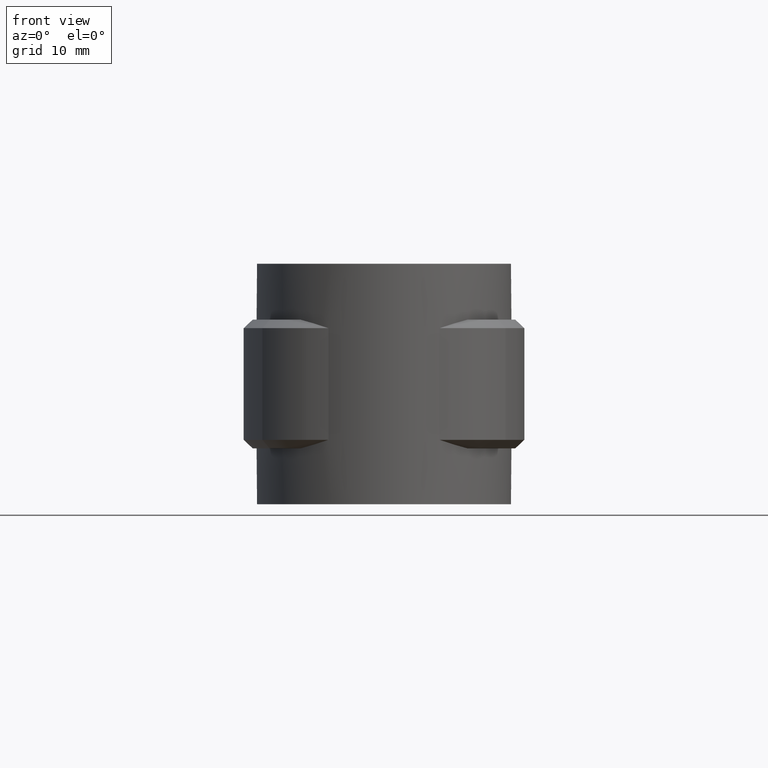
[diagram: clean part render]
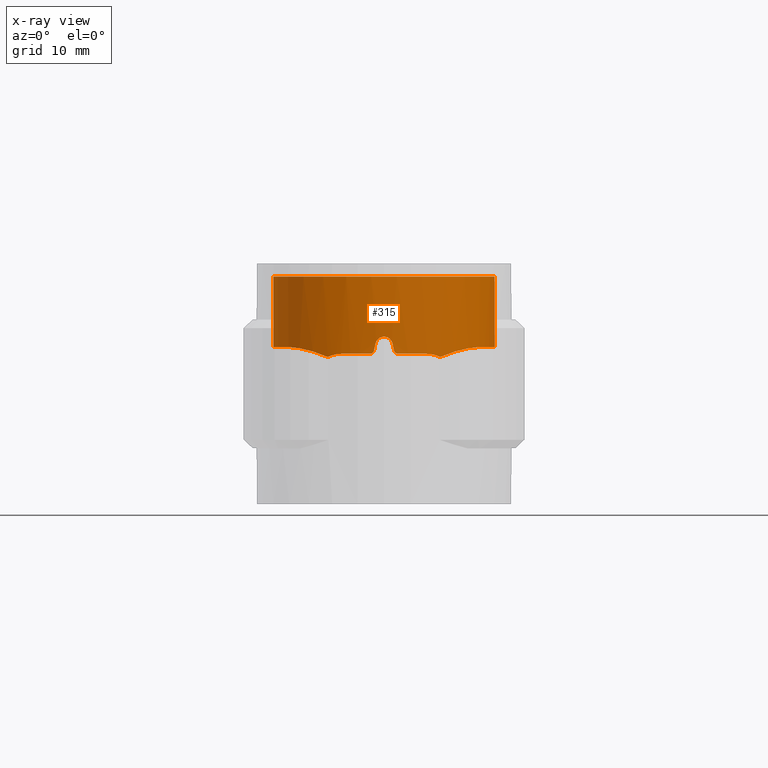
[diagram: x-ray — body ghosted, one internal face saturated and labeled with its STEP entity id]
A machine part, front view, then the same camera in x-ray: the body is ghosted and one INTERNAL B-rep face — a face not visible from any outside direction — is saturated and labeled: STEP entity #315.
In plain terms, the highlighted cylindrical surface (partial cylindrical patch) has radius 12.91 mm, axis along (0, 0, 1).
Its self-contained STEP definition (entity closure, byte-faithful):
#315 = ADVANCED_FACE( '', ( #502 ), #503, .T. );
#502 = FACE_OUTER_BOUND( '', #904, .T. );
#503 = CYLINDRICAL_SURFACE( '', #905, 12.9100000000000 );
#904 = EDGE_LOOP( '', ( #1690, #1691, #1692, #1693, #1694, #1695, #1696, #1697, #1698, #1699, #1700, #1701, #1702, #1703, #1704, #1705 ) );
#905 = AXIS2_PLACEMENT_3D( '', #1706, #1707, #1708 );
#1690 = ORIENTED_EDGE( '', *, *, #4140, .F. );
#1691 = ORIENTED_EDGE( '', *, *, #4141, .F. );
#1692 = ORIENTED_EDGE( '', *, *, #4142, .F. );
#1693 = ORIENTED_EDGE( '', *, *, #4143, .F. );
#1694 = ORIENTED_EDGE( '', *, *, #4144, .F. );
#1695 = ORIENTED_EDGE( '', *, *, #4145, .T. );
#1696 = ORIENTED_EDGE( '', *, *, #4146, .F. );
#1697 = ORIENTED_EDGE( '', *, *, #4147, .F. );
#1698 = ORIENTED_EDGE( '', *, *, #4148, .F. );
#1699 = ORIENTED_EDGE( '', *, *, #4149, .F. );
#1700 = ORIENTED_EDGE( '', *, *, #4150, .F. );
#1701 = ORIENTED_EDGE( '', *, *, #4151, .F. );
#1702 = ORIENTED_EDGE( '', *, *, #4152, .F. );
#1703 = ORIENTED_EDGE( '', *, *, #4153, .F. );
#1704 = ORIENTED_EDGE( '', *, *, #4154, .F. );
#1705 = ORIENTED_EDGE( '', *, *, #4155, .F. );
#1706 = CARTESIAN_POINT( '', ( 0.000000000000000, 0.000000000000000, 0.000000000000000 ) );
#1707 = DIRECTION( '', ( 0.000000000000000, 0.000000000000000, 1.00000000000000 ) );
#1708 = DIRECTION( '', ( 1.00000000000000, -6.12303176911189E-017, 0.000000000000000 ) );
#4140 = EDGE_CURVE( '', #4632, #4633, #4634, .T. );
#4141 = EDGE_CURVE( '', #4635, #4632, #4636, .T. );
#4142 = EDGE_CURVE( '', #4637, #4635, #4638, .T. );
#4143 = EDGE_CURVE( '', #4639, #4637, #4640, .T. );
#4144 = EDGE_CURVE( '', #4641, #4639, #4642, .F. );
#4145 = EDGE_CURVE( '', #4641, #4643, #4644, .T. );
#4146 = EDGE_CURVE( '', #4645, #4643, #4646, .T. );
#4147 = EDGE_CURVE( '', #4647, #4645, #4648, .T. );
#4148 = EDGE_CURVE( '', #4649, #4647, #4650, .T. );
#4149 = EDGE_CURVE( '', #4651, #4649, #4652, .T. );
#4150 = EDGE_CURVE( '', #4653, #4651, #4654, .T. );
#4151 = EDGE_CURVE( '', #4655, #4653, #4656, .T. );
#4152 = EDGE_CURVE( '', #4657, #4655, #4658, .T. );
#4153 = EDGE_CURVE( '', #4659, #4657, #4660, .T. );
#4154 = EDGE_CURVE( '', #4661, #4659, #4662, .T. );
#4155 = EDGE_CURVE( '', #4633, #4661, #4663, .T. );
#4632 = VERTEX_POINT( '', #5454 );
#4633 = VERTEX_POINT( '', #5455 );
#4634 = B_SPLINE_CURVE_WITH_KNOTS( '', 3, ( #5456, #5457, #5458, #5459, #5460, #5461 ), .UNSPECIFIED., .F., .F., ( 4, 2, 4 ), ( 0.0100745744029079, 0.0109624641031997, 0.0118503538034916 ), .UNSPECIFIED. );
#4635 = VERTEX_POINT( '', #5462 );
#4636 = B_SPLINE_CURVE_WITH_KNOTS( '', 3, ( #5463, #5464, #5465, #5466, #5467, #5468, #5469, #5470, #5471, #5472 ), .UNSPECIFIED., .F., .F., ( 4, 2, 2, 2, 4 ), ( 5.64749895672491E-005, 0.00336964445844549, 0.00419793682566506, 0.00502622919288462, 0.00668281392732375 ), .UNSPECIFIED. );
#4637 = VERTEX_POINT( '', #5473 );
#4638 = B_SPLINE_CURVE_WITH_KNOTS( '', 3, ( #5474, #5475, #5476, #5477, #5478, #5479, #5480, #5481, #5482, #5483, #5484, #5485, #5486, #5487, #5488, #5489, #5490, #5491, #5492, #5493, #5494, #5495, #5496, #5497 ), .UNSPECIFIED., .F., .F., ( 4, 2, 2, 2, 2, 2, 2, 2, 2, 2, 2, 4 ), ( 0.000000000000000, 0.00262616169573971, 0.00393924254360956, 0.00525232339147942, 0.00787848508721913, 0.00919156593508899, 0.0105046467829588, 0.0118177276308287, 0.0131308084786986, 0.0157569701744383, 0.0183831318701780, 0.0210092935659177 ), .UNSPECIFIED. );
#4639 = VERTEX_POINT( '', #5498 );
#4640 = LINE( '', #5499, #5500 );
#4641 = VERTEX_POINT( '', #5501 );
#4642 = CIRCLE( '', #5502, 12.9100000000000 );
#4643 = VERTEX_POINT( '', #5503 );
#4644 = LINE( '', #5504, #5505 );
#4645 = VERTEX_POINT( '', #5506 );
#4646 = B_SPLINE_CURVE_WITH_KNOTS( '', 3, ( #5507, #5508, #5509, #5510, #5511, #5512, #5513, #5514, #5515, #5516, #5517, #5518, #5519, #5520, #5521, #5522, #5523, #5524, #5525, #5526, #5527, #5528, #5529, #5530 ), .UNSPECIFIED., .F., .F., ( 4, 2, 2, 2, 2, 2, 2, 2, 2, 2, 2, 4 ), ( 0.000129656456609887, 0.00275580936476012, 0.00538196227291035, 0.00800811518106058, 0.00932119163513569, 0.0106342680892108, 0.0119473445432859, 0.0132604209973610, 0.0158865739055113, 0.0171996503595864, 0.0185127268136615, 0.0211388797218117 ), .UNSPECIFIED. );
#4647 = VERTEX_POINT( '', #5531 );
#4648 = B_SPLINE_CURVE_WITH_KNOTS( '', 3, ( #5532, #5533, #5534, #5535, #5536, #5537, #5538, #5539, #5540, #5541 ), .UNSPECIFIED., .F., .F., ( 4, 2, 2, 2, 4 ), ( 0.0160978879789234, 0.0177464275277819, 0.0193949670766404, 0.0210435066254989, 0.0226920461743574 ), .UNSPECIFIED. );
#4649 = VERTEX_POINT( '', #5542 );
#4650 = B_SPLINE_CURVE_WITH_KNOTS( '', 3, ( #5543, #5544, #5545, #5546, #5547, #5548 ), .UNSPECIFIED., .F., .F., ( 4, 2, 4 ), ( 3.87895961444886E-018, 0.000890649610167902, 0.00178129922033580 ), .UNSPECIFIED. );
#4651 = VERTEX_POINT( '', #5549 );
#4652 = CIRCLE( '', #5550, 12.9100000000000 );
#4653 = VERTEX_POINT( '', #5551 );
#4654 = B_SPLINE_CURVE_WITH_KNOTS( '', 3, ( #5552, #5553, #5554, #5555, #5556, #5557 ), .UNSPECIFIED., .F., .F., ( 4, 2, 4 ), ( 1.78811203067275E-018, 0.000337016490106995, 0.000674032980213989 ), .UNSPECIFIED. );
#4655 = VERTEX_POINT( '', #5558 );
#4656 = ELLIPSE( '', #5559, 58.8122822251916, 12.9100000000000 );
#4657 = VERTEX_POINT( '', #5560 );
#4658 = B_SPLINE_CURVE_WITH_KNOTS( '', 3, ( #5561, #5562, #5563, #5564, #5565, #5566, #5567, #5568, #5569, #5570 ), .UNSPECIFIED., .F., .F., ( 4, 2, 2, 2, 4 ), ( 9.26342742239755E-019, 0.000671833198564516, 0.00134366639712903, 0.00201549959569355, 0.00268733279425806 ), .UNSPECIFIED. );
#4659 = VERTEX_POINT( '', #5571 );
#4660 = ELLIPSE( '', #5572, 58.8122522236967, 12.9100000000000 );
#4661 = VERTEX_POINT( '', #5573 );
#4662 = B_SPLINE_CURVE_WITH_KNOTS( '', 3, ( #5574, #5575, #5576, #5577, #5578, #5579 ), .UNSPECIFIED., .F., .F., ( 4, 2, 4 ), ( 8.59738825340030E-018, 0.000336992785626757, 0.000673985571253506 ), .UNSPECIFIED. );
#4663 = CIRCLE( '', #5580, 12.9100000000000 );
#5454 = CARTESIAN_POINT( '', ( 6.55531539840426, -11.1218676501629, -9.36455840247556 ) );
#5455 = CARTESIAN_POINT( '', ( 5.00000000000000, -11.9024409261294, -9.00000000000000 ) );
#5456 = CARTESIAN_POINT( '', ( 6.55531539839940, -11.1218676501525, -9.36455840247315 ) );
#5457 = CARTESIAN_POINT( '', ( 6.32015172997991, -11.2604749475260, -9.24790699524380 ) );
#5458 = CARTESIAN_POINT( '', ( 6.07227759219039, -11.3965686208257, -9.15741431722998 ) );
#5459 = CARTESIAN_POINT( '', ( 5.54781086048457, -11.6608801615528, -9.03264343591434 ) );
#5460 = CARTESIAN_POINT( '', ( 5.27729536608152, -11.7859541618587, -8.99999999999998 ) );
#5461 = CARTESIAN_POINT( '', ( 5.00000000000000, -11.9024409261294, -8.99999999999997 ) );
#5462 = CARTESIAN_POINT( '', ( 11.1158138239829, -6.56557560542489, -8.20578959438986 ) );
#5463 = CARTESIAN_POINT( '', ( 11.1158138239829, -6.56557560542494, -8.20578959438988 ) );
#5464 = CARTESIAN_POINT( '', ( 10.5464443727055, -7.52954361033721, -8.22947050627596 ) );
#5465 = CARTESIAN_POINT( '', ( 9.86791215848430, -8.39632120479452, -8.32228283400496 ) );
#5466 = CARTESIAN_POINT( '', ( 8.89301540923205, -9.36257119812790, -8.55205024377319 ) );
#5467 = CARTESIAN_POINT( '', ( 8.69064900902042, -9.55066263861365, -8.60412425549421 ) );
#5468 = CARTESIAN_POINT( '', ( 8.27939493538369, -9.90929647041309, -8.71992973518773 ) );
#5469 = CARTESIAN_POINT( '', ( 8.07031816018667, -10.0801522768064, -8.78365793155719 ) );
#5470 = CARTESIAN_POINT( '', ( 7.43428651696818, -10.5681173585745, -8.99485449832332 ) );
#5471 = CARTESIAN_POINT( '', ( 6.99828295475331, -10.8607791230728, -9.16145208623091 ) );
#5472 = CARTESIAN_POINT( '', ( 6.55531539839195, -11.1218676501568, -9.36455840245641 ) );
#5473 = CARTESIAN_POINT( '', ( 5.86408106219426, 11.5013326747823, -8.20739690841978 ) );
#5474 = CARTESIAN_POINT( '', ( 5.86408106219414, 11.5013326747819, -8.20739690841976 ) );
#5475 = CARTESIAN_POINT( '', ( 6.65374116884316, 11.0987157774267, -8.20850447027293 ) );
#5476 = CARTESIAN_POINT( '', ( 7.38958332781680, 10.6221521878716, -8.20858405756369 ) );
#5477 = CARTESIAN_POINT( '', ( 8.41533312395805, 9.80011520993900, -8.20708110828982 ) );
#5478 = CARTESIAN_POINT( '', ( 8.74414498631812, 9.50809673492435, -8.20639190411669 ) );
#5479 = CARTESIAN_POINT( '', ( 9.37475983291397, 8.88694847164168, -8.20561692229041 ) );
#5480 = CARTESIAN_POINT( '', ( 9.67287342745124, 8.56128400351433, -8.20572960681877 ) );
#5481 = CARTESIAN_POINT( '', ( 10.5101398341898, 7.54804061959582, -8.20652661653835 ) );
#5482 = CARTESIAN_POINT( '', ( 10.9960156998445, 6.82143340626685, -8.20714016871088 ) );
#5483 = CARTESIAN_POINT( '', ( 11.6146013299799, 5.65359971102201, -8.20657302665307 ) );
#5484 = CARTESIAN_POINT( '', ( 11.8023493674690, 5.25030594704200, -8.20620526057068 ) );
#5485 = CARTESIAN_POINT( '', ( 12.1320109621542, 4.43570435709030, -8.20573297040744 ) );
#5486 = CARTESIAN_POINT( '', ( 12.2752050490306, 4.02222885437337, -8.20576909265969 ) );
#5487 = CARTESIAN_POINT( '', ( 12.5190504116225, 3.18313693452782, -8.20637065521503 ) );
#5488 = CARTESIAN_POINT( '', ( 12.6197013675470, 2.75752039986490, -8.20679643887767 ) );
#5489 = CARTESIAN_POINT( '', ( 12.7778575343168, 1.89397417998296, -8.20728006603311 ) );
#5490 = CARTESIAN_POINT( '', ( 12.8354998262448, 1.45348005402686, -8.20733455973577 ) );
#5491 = CARTESIAN_POINT( '', ( 12.9394089698893, 0.134297199856605, -8.20683423367183 ) );
#5492 = CARTESIAN_POINT( '', ( 12.9184987145224, -0.739797247285423, -8.20551512183127 ) );
#5493 = CARTESIAN_POINT( '', ( 12.7002716409491, -2.47750060551170, -8.20619344333584 ) );
#5494 = CARTESIAN_POINT( '', ( 12.4990630494520, -3.34816613684993, -8.20718605735141 ) );
#5495 = CARTESIAN_POINT( '', ( 11.9316203915142, -5.00731748812940, -8.20660974321114 ) );
#5496 = CARTESIAN_POINT( '', ( 11.5658892249966, -5.80357775001811, -8.20541266015146 ) );
#5497 = CARTESIAN_POINT( '', ( 11.1158139196182, -6.56557544351003, -8.20578963022182 ) );
#5498 = CARTESIAN_POINT( '', ( 5.86408106219427, 11.5013326747823, 0.000000000000000 ) );
#5499 = CARTESIAN_POINT( '', ( 5.86408106219426, 11.5013326747823, 0.000000000000000 ) );
#5500 = VECTOR( '', #7958, 1000.00000000000 );
#5501 = CARTESIAN_POINT( '', ( -5.86408106219428, 11.5013326747823, 0.000000000000000 ) );
#5502 = AXIS2_PLACEMENT_3D( '', #7959, #7960, #7961 );
#5503 = CARTESIAN_POINT( '', ( -5.86408106219428, 11.5013326747823, -8.20739690841976 ) );
#5504 = CARTESIAN_POINT( '', ( -5.86408106219428, 11.5013326747823, 0.000000000000000 ) );
#5505 = VECTOR( '', #7962, 1000.00000000000 );
#5506 = CARTESIAN_POINT( '', ( -11.1158138117273, -6.56557536555153, -8.20578944713719 ) );
#5507 = CARTESIAN_POINT( '', ( -11.1158139198082, -6.56557544318840, -8.20578963022167 ) );
#5508 = CARTESIAN_POINT( '', ( -11.5658895666344, -5.80357717155958, -8.20541265983342 ) );
#5509 = CARTESIAN_POINT( '', ( -11.9316290002090, -5.00730256760636, -8.20660977903030 ) );
#5510 = CARTESIAN_POINT( '', ( -12.4990860526415, -3.34808862649229, -8.20718605363684 ) );
#5511 = CARTESIAN_POINT( '', ( -12.7002847397959, -2.47743396846048, -8.20619335995856 ) );
#5512 = CARTESIAN_POINT( '', ( -12.9185028600661, -0.739726567347056, -8.20551515161069 ) );
#5513 = CARTESIAN_POINT( '', ( -12.9394152110773, 0.134421759773272, -8.20683441878293 ) );
#5514 = CARTESIAN_POINT( '', ( -12.8354691177185, 1.45376797723548, -8.20733459997422 ) );
#5515 = CARTESIAN_POINT( '', ( -12.7778245707622, 1.89418809180430, -8.20727999148852 ) );
#5516 = CARTESIAN_POINT( '', ( -12.6196695409946, 2.75766023367656, -8.20679631528926 ) );
#5517 = CARTESIAN_POINT( '', ( -12.5190193632556, 3.18325923349691, -8.20637053989893 ) );
#5518 = CARTESIAN_POINT( '', ( -12.2751649397534, 4.02235141019047, -8.20576903244233 ) );
#5519 = CARTESIAN_POINT( '', ( -12.1319610712916, 4.43584472086579, -8.20573300720573 ) );
#5520 = CARTESIAN_POINT( '', ( -11.8022579748046, 5.25051469087844, -8.20620542619728 ) );
#5521 = CARTESIAN_POINT( '', ( -11.6144849626805, 5.65383498072771, -8.20657318849852 ) );
#5522 = CARTESIAN_POINT( '', ( -10.9959482314771, 6.82152961154646, -8.20714012021692 ) );
#5523 = CARTESIAN_POINT( '', ( -10.5100859424053, 7.54812196949581, -8.20652650478775 ) );
#5524 = CARTESIAN_POINT( '', ( -9.67275572270321, 8.56141837984192, -8.20572952500622 ) );
#5525 = CARTESIAN_POINT( '', ( -9.37454082121899, 8.88717660388074, -8.20561706952225 ) );
#5526 = CARTESIAN_POINT( '', ( -8.74399641512103, 9.50823066030778, -8.20639220868978 ) );
#5527 = CARTESIAN_POINT( '', ( -8.41521652184689, 9.80021364609151, -8.20708131043808 ) );
#5528 = CARTESIAN_POINT( '', ( -7.38954783507031, 10.6221706476417, -8.20858404695509 ) );
#5529 = CARTESIAN_POINT( '', ( -6.65374034264627, 11.0987161986727, -8.20850446911512 ) );
#5530 = CARTESIAN_POINT( '', ( -5.86408106219440, 11.5013326747822, -8.20739690842075 ) );
#5531 = CARTESIAN_POINT( '', ( -6.55531539837834, -11.1218676501649, -9.36455840246265 ) );
#5532 = CARTESIAN_POINT( '', ( -6.55531539837834, -11.1218676501649, -9.36455840246266 ) );
#5533 = CARTESIAN_POINT( '', ( -6.99852238394520, -10.8606380016434, -9.16134230486932 ) );
#5534 = CARTESIAN_POINT( '', ( -7.44309559181321, -10.5619465283304, -8.99160964930165 ) );
#5535 = CARTESIAN_POINT( '', ( -8.29155193523837, -9.90982103579191, -8.71052310510686 ) );
#5536 = CARTESIAN_POINT( '', ( -8.69778571529013, -9.55572697920057, -8.59818379681480 ) );
#5537 = CARTESIAN_POINT( '', ( -9.47003956949129, -8.79100364022198, -8.41593517796647 ) );
#5538 = CARTESIAN_POINT( '', ( -9.83809333796789, -8.37777732360424, -8.34635335692084 ) );
#5539 = CARTESIAN_POINT( '', ( -10.5198548985255, -7.50385809596873, -8.24729764131963 ) );
#5540 = CARTESIAN_POINT( '', ( -10.8323270987695, -7.04553134027726, -8.21758022428344 ) );
#5541 = CARTESIAN_POINT( '', ( -11.1158138288986, -6.56557559710236, -8.20578959418543 ) );
#5542 = CARTESIAN_POINT( '', ( -5.00000000000005, -11.9024409261294, -9.00000000000000 ) );
#5543 = CARTESIAN_POINT( '', ( -5.00000000000005, -11.9024409261294, -8.99999999999997 ) );
#5544 = CARTESIAN_POINT( '', ( -5.27791933988741, -11.7856920417567, -8.99999999999997 ) );
#5545 = CARTESIAN_POINT( '', ( -5.54620353624585, -11.6615722990112, -9.03259733755304 ) );
#5546 = CARTESIAN_POINT( '', ( -6.06560149942964, -11.4000491490453, -9.15549510824620 ) );
#5547 = CARTESIAN_POINT( '', ( -6.31911453996093, -11.2610862753992, -9.24739250388705 ) );
#5548 = CARTESIAN_POINT( '', ( -6.55531539837834, -11.1218676501649, -9.36455840246265 ) );
#5549 = CARTESIAN_POINT( '', ( -1.65000000000003, -12.8041243355413, -9.00000000000000 ) );
#5550 = AXIS2_PLACEMENT_3D( '', #7963, #7964, #7965 );
#5551 = CARTESIAN_POINT( '', ( -1.16219512100914, -12.8575815183378, -8.60975609337373 ) );
#5552 = CARTESIAN_POINT( '', ( -1.16219512100915, -12.8575815183378, -8.60975609337372 ) );
#5553 = CARTESIAN_POINT( '', ( -1.18720577628469, -12.8553208084607, -8.72091456572038 ) );
#5554 = CARTESIAN_POINT( '', ( -1.24952712846974, -12.8496981485357, -8.82016248163292 ) );
#5555 = CARTESIAN_POINT( '', ( -1.42700965376445, -12.8312004115487, -8.96169020020224 ) );
#5556 = CARTESIAN_POINT( '', ( -1.53699580313443, -12.8186865906352, -8.99999999999994 ) );
#5557 = CARTESIAN_POINT( '', ( -1.65000000000003, -12.8041243355413, -8.99999999999994 ) );
#5558 = CARTESIAN_POINT( '', ( -0.975610000000025, -12.8730837458590, -7.78048800000004 ) );
#5559 = AXIS2_PLACEMENT_3D( '', #7966, #7967, #7968 );
#5560 = CARTESIAN_POINT( '', ( 0.975609757981814, -12.8730837642008, -7.78048781325256 ) );
#5561 = CARTESIAN_POINT( '', ( 0.975609757981816, -12.8730837642008, -7.78048781325256 ) );
#5562 = CARTESIAN_POINT( '', ( 0.925748592681881, -12.8768625821051, -7.55888272429547 ) );
#5563 = CARTESIAN_POINT( '', ( 0.801986059792278, -12.8862875597982, -7.36098203978120 ) );
#5564 = CARTESIAN_POINT( '', ( 0.447500666767335, -12.9034620109160, -7.07735773491965 ) );
#5565 = CARTESIAN_POINT( '', ( 0.227172866612440, -12.9100000447177, -6.99999944197818 ) );
#5566 = CARTESIAN_POINT( '', ( -0.227177949106791, -12.9099999552818, -7.00000055116068 ) );
#5567 = CARTESIAN_POINT( '', ( -0.447613664813755, -12.9034572666642, -7.07742832058838 ) );
#5568 = CARTESIAN_POINT( '', ( -0.801979139741392, -12.8862871644620, -7.36099601310312 ) );
#5569 = CARTESIAN_POINT( '', ( -0.925748842232397, -12.8768625641352, -7.55888274644759 ) );
#5570 = CARTESIAN_POINT( '', ( -0.975610000000026, -12.8730837458590, -7.78048800000004 ) );
#5571 = CARTESIAN_POINT( '', ( 1.16219499999999, -12.8575815292758, -8.60975599999998 ) );
#5572 = AXIS2_PLACEMENT_3D( '', #7969, #7970, #7971 );
#5573 = CARTESIAN_POINT( '', ( 1.64999999999995, -12.8041243355413, -9.00000000000000 ) );
#5574 = CARTESIAN_POINT( '', ( 1.64999999999995, -12.8041243355413, -8.99999999999994 ) );
#5575 = CARTESIAN_POINT( '', ( 1.53699571464535, -12.8186866020383, -9.00000000048495 ) );
#5576 = CARTESIAN_POINT( '', ( 1.42700640850480, -12.8312006729534, -8.96168353558250 ) );
#5577 = CARTESIAN_POINT( '', ( 1.24955236960382, -12.8496955946485, -8.82018675731936 ) );
#5578 = CARTESIAN_POINT( '', ( 1.18720569103340, -12.8553208164039, -8.72091462904289 ) );
#5579 = CARTESIAN_POINT( '', ( 1.16219499999999, -12.8575815292758, -8.60975599999998 ) );
#5580 = AXIS2_PLACEMENT_3D( '', #7972, #7973, #7974 );
#7958 = DIRECTION( '', ( 0.000000000000000, 0.000000000000000, -1.00000000000000 ) );
#7959 = CARTESIAN_POINT( '', ( 0.000000000000000, 0.000000000000000, 0.000000000000000 ) );
#7960 = DIRECTION( '', ( 0.000000000000000, 0.000000000000000, -1.00000000000000 ) );
#7961 = DIRECTION( '', ( -1.00000000000000, 0.000000000000000, 0.000000000000000 ) );
#7962 = DIRECTION( '', ( 0.000000000000000, 0.000000000000000, -1.00000000000000 ) );
#7963 = CARTESIAN_POINT( '', ( 0.000000000000000, 0.000000000000000, -9.00000000000000 ) );
#7964 = DIRECTION( '', ( 6.12303176911189E-017, -1.56572574765720E-016, -1.00000000000000 ) );
#7965 = DIRECTION( '', ( 0.000000000000000, 1.00000000000000, -1.56572574765720E-016 ) );
#7966 = CARTESIAN_POINT( '', ( 0.000000000000000, 0.000000000000000, -3.44443890776446 ) );
#7967 = DIRECTION( '', ( 0.975609806487711, 1.65590917266197E-017, -0.219511971165610 ) );
#7968 = DIRECTION( '', ( -0.219511971165610, -3.72579164482623E-018, -0.975609806487711 ) );
#7969 = CARTESIAN_POINT( '', ( 0.000000000000000, 0.000000000000000, -3.44444212055029 ) );
#7970 = DIRECTION( '', ( -0.975609781292647, -8.52982169786940E-017, -0.219512083143762 ) );
#7971 = DIRECTION( '', ( 0.219512083143762, 1.91920885342428E-017, -0.975609781292647 ) );
#7972 = CARTESIAN_POINT( '', ( 0.000000000000000, 0.000000000000000, -9.00000000000000 ) );
#7973 = DIRECTION( '', ( 6.12303176911189E-017, -1.56572574765720E-016, -1.00000000000000 ) );
#7974 = DIRECTION( '', ( 0.000000000000000, 1.00000000000000, -1.56572574765720E-016 ) );